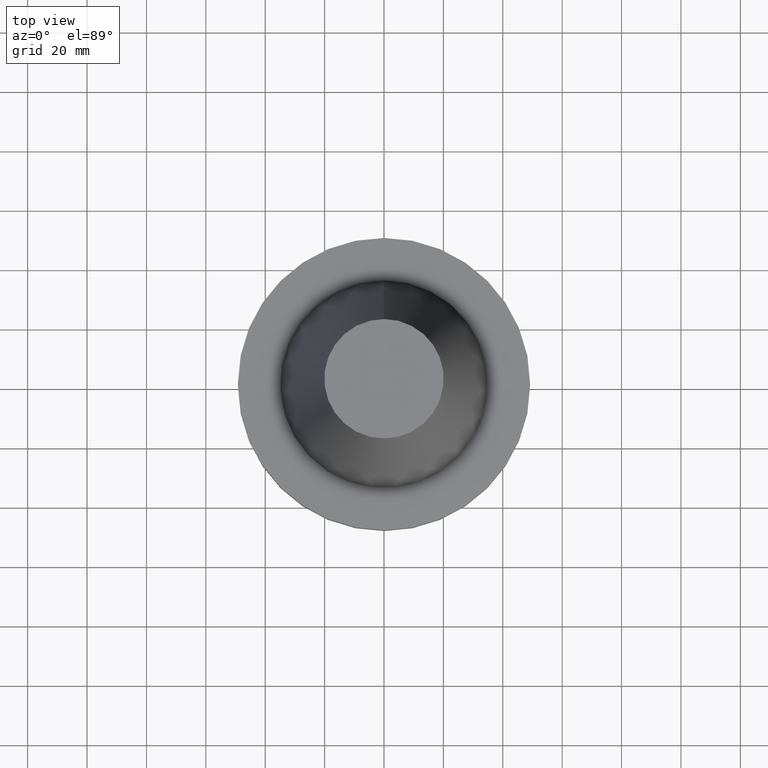
[diagram: clean part render]
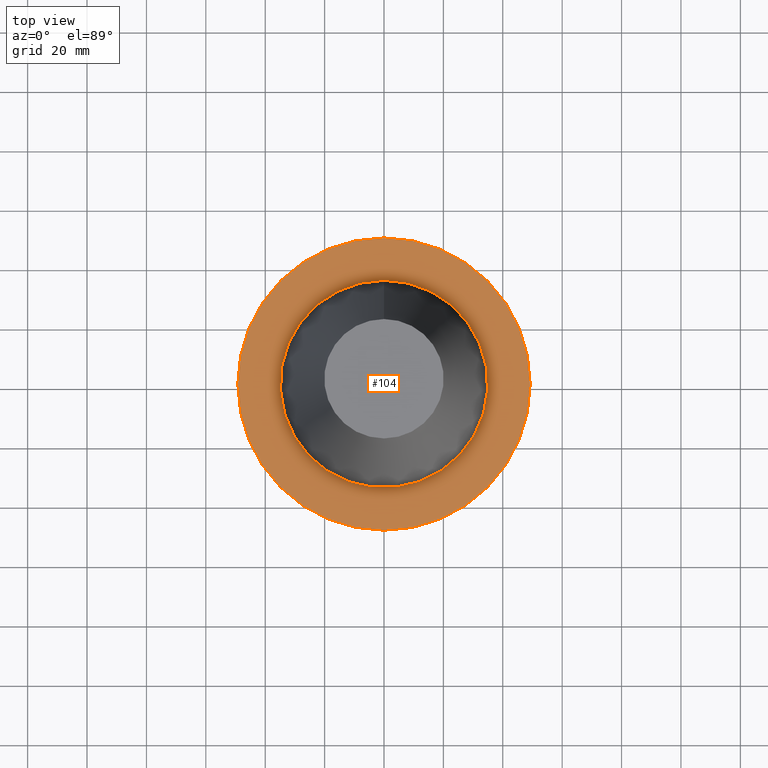
[diagram: same view with one face highlighted and labeled with its STEP entity id]
A machine part, top view. The second image highlights one B-rep face of the part: STEP entity #104.
In plain terms, the highlighted planar face has unit normal (-0, -0, 1).
Its self-contained STEP definition (entity closure, byte-faithful):
#66=EDGE_CURVE('Unnamed[1]',#169,#169,#170,.T.);
#99=EDGE_CURVE('Unnamed[1]',#221,#221,#222,.T.);
#104=ADVANCED_FACE('Unnamed[1]',(#228,#229),#230,.T.);
#169=VERTEX_POINT('',#306);
#170=CIRCLE('',#307,49.2125);
#221=VERTEX_POINT('',#371);
#222=CIRCLE('',#372,34.925);
#228=FACE_OUTER_BOUND('',#380,.T.);
#229=FACE_BOUND('',#381,.T.);
#230=PLANE('',#382);
#306=CARTESIAN_POINT('',(9.18485099360509E-017,49.2125,-1.49999999999999));
#307=AXIS2_PLACEMENT_3D('',#460,#461,#462);
#371=CARTESIAN_POINT('',(9.18485099360511E-017,34.925,-1.5));
#372=AXIS2_PLACEMENT_3D('',#519,#520,#521);
#380=EDGE_LOOP('',(#526));
#381=EDGE_LOOP('',(#527));
#382=AXIS2_PLACEMENT_3D('',#528,#529,#530);
#460=CARTESIAN_POINT('',(9.18485099360515E-017,1.83697019872103E-016,-1.5));
#461=DIRECTION('',(6.12323399573677E-017,1.22464679914777E-016,-1.0));
#462=DIRECTION('',(-1.23259516440769E-032,1.0,1.22464679914777E-016));
#519=CARTESIAN_POINT('',(9.18485099360515E-017,1.83697019872103E-016,-1.5));
#520=DIRECTION('',(6.12323399573677E-017,1.22464679914705E-016,-1.0));
#521=DIRECTION('',(-1.23259516440742E-032,1.0,1.22464679914705E-016));
#526=ORIENTED_EDGE('',*,*,#66,.F.);
#527=ORIENTED_EDGE('',*,*,#99,.T.);
#528=CARTESIAN_POINT('',(9.1848509936051E-017,42.06875,-1.49999999999999));
#529=DIRECTION('',(-6.12323399573677E-017,-1.22464679914735E-016,1.0));
#530=DIRECTION('',(1.23259516440783E-032,-1.0,-1.22464679914735E-016));